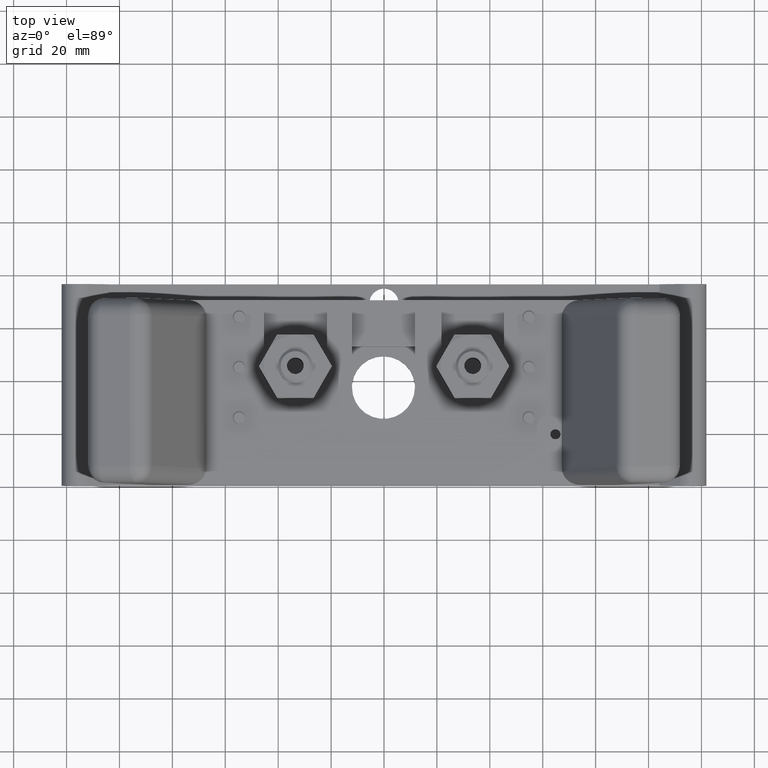
[diagram: clean part render]
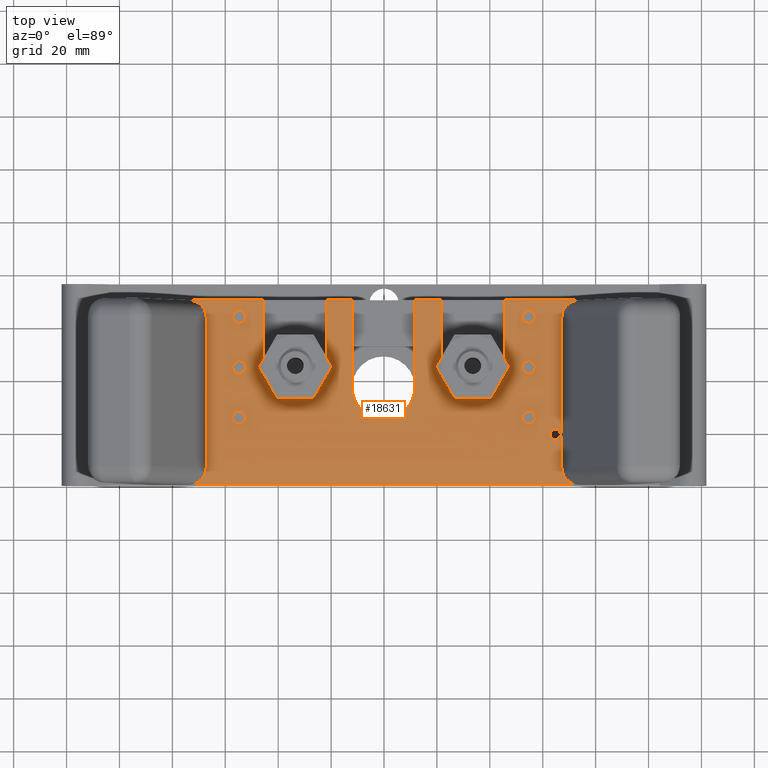
[diagram: same view with one face highlighted and labeled with its STEP entity id]
A machine part, top view. The second image highlights one B-rep face of the part: STEP entity #18631.
In plain terms, the highlighted planar face has unit normal (0, 0, -1).
Its self-contained STEP definition (entity closure, byte-faithful):
#3085=DIRECTION('',(-1.E0,0.E0,0.E0));
#3086=VECTOR('',#3085,1.129598050073E0);
#3087=CARTESIAN_POINT('',(2.917598050073E0,2.75E0,1.0816E0));
#3088=LINE('',#3087,#3086);
#3097=DIRECTION('',(-1.E0,0.E0,0.E0));
#3098=VECTOR('',#3097,3.92E-1);
#3099=CARTESIAN_POINT('',(8.52E-1,2.75E0,1.0816E0));
#3100=LINE('',#3099,#3098);
#3109=DIRECTION('',(-1.E0,0.E0,0.E0));
#3110=VECTOR('',#3109,3.76E-1);
#3111=CARTESIAN_POINT('',(-4.76E-1,2.75E0,1.0816E0));
#3112=LINE('',#3111,#3110);
#3121=DIRECTION('',(-1.E0,0.E0,0.E0));
#3122=VECTOR('',#3121,1.129598050073E0);
#3123=CARTESIAN_POINT('',(-1.788E0,2.75E0,1.0816E0));
#3124=LINE('',#3123,#3122);
#3193=DIRECTION('',(1.E0,0.E0,0.E0));
#3194=VECTOR('',#3193,5.835196100147E0);
#3195=CARTESIAN_POINT('',(-2.917598050073E0,0.E0,1.0816E0));
#3196=LINE('',#3195,#3194);
#3229=CARTESIAN_POINT('',(2.647E0,2.5E-1,1.0816E0));
#3230=CARTESIAN_POINT('',(2.647E0,2.391542072901E-1,1.0816E0));
#3231=CARTESIAN_POINT('',(2.648493906338E0,2.189565282088E-1,1.0816E0));
#3232=CARTESIAN_POINT('',(2.655716259480E0,1.827957105110E-1,1.0816E0));
#3233=CARTESIAN_POINT('',(2.670882758204E0,1.437332456859E-1,1.0816E0));
#3234=CARTESIAN_POINT('',(2.696180612941E0,1.039563441642E-1,1.0816E0));
#3235=CARTESIAN_POINT('',(2.727537617967E0,7.023859293100E-2,1.0816E0));
#3236=CARTESIAN_POINT('',(2.764585281088E0,4.221149979235E-2,1.0816E0));
#3237=CARTESIAN_POINT('',(2.807501866085E0,2.005332853070E-2,1.0816E0));
#3238=CARTESIAN_POINT('',(2.857122440366E0,4.599146552320E-3,1.0816E0));
#3239=CARTESIAN_POINT('',(2.895906464653E0,0.E0,1.0816E0));
#3240=CARTESIAN_POINT('',(2.917598050073E0,0.E0,1.0816E0));
#3242=CARTESIAN_POINT('',(-2.647E0,2.5E0,1.0816E0));
#3243=CARTESIAN_POINT('',(-2.647E0,2.510845792710E0,1.0816E0));
#3244=CARTESIAN_POINT('',(-2.648493906338E0,2.531043471791E0,1.0816E0));
#3245=CARTESIAN_POINT('',(-2.655716259480E0,2.567204289489E0,1.0816E0));
#3246=CARTESIAN_POINT('',(-2.670882758204E0,2.606266754314E0,1.0816E0));
#3247=CARTESIAN_POINT('',(-2.696180612941E0,2.646043655836E0,1.0816E0));
#3248=CARTESIAN_POINT('',(-2.727537617967E0,2.679761407069E0,1.0816E0));
#3249=CARTESIAN_POINT('',(-2.764585281088E0,2.707788500208E0,1.0816E0));
#3250=CARTESIAN_POINT('',(-2.807501866085E0,2.729946671469E0,1.0816E0));
#3251=CARTESIAN_POINT('',(-2.857122440366E0,2.745400853448E0,1.0816E0));
#3252=CARTESIAN_POINT('',(-2.895906464653E0,2.75E0,1.0816E0));
#3253=CARTESIAN_POINT('',(-2.917598050073E0,2.75E0,1.0816E0));
#3255=CARTESIAN_POINT('',(-1.32E0,1.75E0,1.0816E0));
#3256=DIRECTION('',(0.E0,0.E0,1.E0));
#3257=DIRECTION('',(-1.E0,0.E0,0.E0));
#3258=AXIS2_PLACEMENT_3D('',#3255,#3256,#3257);
#3260=DIRECTION('',(0.E0,1.E0,0.E0));
#3261=VECTOR('',#3260,1.E0);
#3262=CARTESIAN_POINT('',(-8.52E-1,1.75E0,1.0816E0));
#3263=LINE('',#3262,#3261);
#3264=CARTESIAN_POINT('',(-8.E-3,1.45E0,1.0816E0));
#3265=DIRECTION('',(0.E0,0.E0,1.E0));
#3266=DIRECTION('',(-1.E0,0.E0,0.E0));
#3267=AXIS2_PLACEMENT_3D('',#3264,#3265,#3266);
#3269=DIRECTION('',(0.E0,1.E0,0.E0));
#3270=VECTOR('',#3269,1.3E0);
#3271=CARTESIAN_POINT('',(4.6E-1,1.45E0,1.0816E0));
#3272=LINE('',#3271,#3270);
#3273=CARTESIAN_POINT('',(1.32E0,1.75E0,1.0816E0));
#3274=DIRECTION('',(0.E0,0.E0,1.E0));
#3275=DIRECTION('',(-1.E0,3.036507417778E-14,0.E0));
#3276=AXIS2_PLACEMENT_3D('',#3273,#3274,#3275);
#3278=DIRECTION('',(0.E0,1.E0,0.E0));
#3279=VECTOR('',#3278,1.E0);
#3280=CARTESIAN_POINT('',(1.788E0,1.75E0,1.0816E0));
#3281=LINE('',#3280,#3279);
#3282=CARTESIAN_POINT('',(2.55E0,7.5E-1,1.0816E0));
#3283=DIRECTION('',(0.E0,0.E0,1.E0));
#3284=DIRECTION('',(-1.E0,0.E0,0.E0));
#3285=AXIS2_PLACEMENT_3D('',#3282,#3283,#3284);
#3287=CARTESIAN_POINT('',(2.55E0,7.5E-1,1.0816E0));
#3288=DIRECTION('',(0.E0,0.E0,1.E0));
#3289=DIRECTION('',(1.E0,0.E0,0.E0));
#3290=AXIS2_PLACEMENT_3D('',#3287,#3288,#3289);
#3292=CARTESIAN_POINT('',(-2.156E0,1.75E0,1.0816E0));
#3293=DIRECTION('',(0.E0,0.E0,1.E0));
#3294=DIRECTION('',(1.E0,0.E0,0.E0));
#3295=AXIS2_PLACEMENT_3D('',#3292,#3293,#3294);
#3297=CARTESIAN_POINT('',(-2.156E0,1.75E0,1.0816E0));
#3298=DIRECTION('',(0.E0,0.E0,1.E0));
#3299=DIRECTION('',(-1.E0,0.E0,0.E0));
#3300=AXIS2_PLACEMENT_3D('',#3297,#3298,#3299);
#3302=CARTESIAN_POINT('',(2.156E0,1.75E0,1.0816E0));
#3303=DIRECTION('',(0.E0,0.E0,1.E0));
#3304=DIRECTION('',(1.E0,0.E0,0.E0));
#3305=AXIS2_PLACEMENT_3D('',#3302,#3303,#3304);
#3307=CARTESIAN_POINT('',(2.156E0,1.75E0,1.0816E0));
#3308=DIRECTION('',(0.E0,0.E0,1.E0));
#3309=DIRECTION('',(-1.E0,0.E0,0.E0));
#3310=AXIS2_PLACEMENT_3D('',#3307,#3308,#3309);
#3312=CARTESIAN_POINT('',(-2.156E0,2.5E0,1.0816E0));
#3313=DIRECTION('',(0.E0,0.E0,1.E0));
#3314=DIRECTION('',(1.E0,0.E0,0.E0));
#3315=AXIS2_PLACEMENT_3D('',#3312,#3313,#3314);
#3317=CARTESIAN_POINT('',(-2.156E0,2.5E0,1.0816E0));
#3318=DIRECTION('',(0.E0,0.E0,1.E0));
#3319=DIRECTION('',(-1.E0,0.E0,0.E0));
#3320=AXIS2_PLACEMENT_3D('',#3317,#3318,#3319);
#3322=CARTESIAN_POINT('',(-2.156E0,1.E0,1.0816E0));
#3323=DIRECTION('',(0.E0,0.E0,1.E0));
#3324=DIRECTION('',(1.E0,0.E0,0.E0));
#3325=AXIS2_PLACEMENT_3D('',#3322,#3323,#3324);
#3327=CARTESIAN_POINT('',(-2.156E0,1.E0,1.0816E0));
#3328=DIRECTION('',(0.E0,0.E0,1.E0));
#3329=DIRECTION('',(-1.E0,0.E0,0.E0));
#3330=AXIS2_PLACEMENT_3D('',#3327,#3328,#3329);
#3332=CARTESIAN_POINT('',(2.156E0,2.5E0,1.0816E0));
#3333=DIRECTION('',(0.E0,0.E0,1.E0));
#3334=DIRECTION('',(1.E0,0.E0,0.E0));
#3335=AXIS2_PLACEMENT_3D('',#3332,#3333,#3334);
#3337=CARTESIAN_POINT('',(2.156E0,2.5E0,1.0816E0));
#3338=DIRECTION('',(0.E0,0.E0,1.E0));
#3339=DIRECTION('',(-1.E0,0.E0,0.E0));
#3340=AXIS2_PLACEMENT_3D('',#3337,#3338,#3339);
#3342=CARTESIAN_POINT('',(2.156E0,1.E0,1.0816E0));
#3343=DIRECTION('',(0.E0,0.E0,1.E0));
#3344=DIRECTION('',(1.E0,0.E0,0.E0));
#3345=AXIS2_PLACEMENT_3D('',#3342,#3343,#3344);
#3347=CARTESIAN_POINT('',(2.156E0,1.E0,1.0816E0));
#3348=DIRECTION('',(0.E0,0.E0,1.E0));
#3349=DIRECTION('',(-1.E0,0.E0,0.E0));
#3350=AXIS2_PLACEMENT_3D('',#3347,#3348,#3349);
#3352=DIRECTION('',(0.E0,1.E0,0.E0));
#3353=VECTOR('',#3352,2.25E0);
#3354=CARTESIAN_POINT('',(2.647E0,2.5E-1,1.0816E0));
#3355=LINE('',#3354,#3353);
#3356=CARTESIAN_POINT('',(2.647E0,2.5E0,1.0816E0));
#3357=CARTESIAN_POINT('',(2.647E0,2.510845792710E0,1.0816E0));
#3358=CARTESIAN_POINT('',(2.648493906338E0,2.531043471791E0,1.0816E0));
#3359=CARTESIAN_POINT('',(2.655716259480E0,2.567204289489E0,1.0816E0));
#3360=CARTESIAN_POINT('',(2.670882758204E0,2.606266754314E0,1.0816E0));
#3361=CARTESIAN_POINT('',(2.696180612941E0,2.646043655836E0,1.0816E0));
#3362=CARTESIAN_POINT('',(2.727537617967E0,2.679761407069E0,1.0816E0));
#3363=CARTESIAN_POINT('',(2.764585281088E0,2.707788500208E0,1.0816E0));
#3364=CARTESIAN_POINT('',(2.807501866085E0,2.729946671469E0,1.0816E0));
#3365=CARTESIAN_POINT('',(2.857122440366E0,2.745400853448E0,1.0816E0));
#3366=CARTESIAN_POINT('',(2.895906464653E0,2.75E0,1.0816E0));
#3367=CARTESIAN_POINT('',(2.917598050073E0,2.75E0,1.0816E0));
#3465=CARTESIAN_POINT('',(-2.647E0,2.5E-1,1.0816E0));
#3466=CARTESIAN_POINT('',(-2.647E0,2.391542072901E-1,1.0816E0));
#3467=CARTESIAN_POINT('',(-2.648493906338E0,2.189565282088E-1,1.0816E0));
#3468=CARTESIAN_POINT('',(-2.655716259480E0,1.827957105110E-1,1.0816E0));
#3469=CARTESIAN_POINT('',(-2.670882758204E0,1.437332456859E-1,1.0816E0));
#3470=CARTESIAN_POINT('',(-2.696180612941E0,1.039563441642E-1,1.0816E0));
#3471=CARTESIAN_POINT('',(-2.727537617967E0,7.023859293100E-2,1.0816E0));
#3472=CARTESIAN_POINT('',(-2.764585281088E0,4.221149979235E-2,1.0816E0));
#3473=CARTESIAN_POINT('',(-2.807501866085E0,2.005332853070E-2,1.0816E0));
#3474=CARTESIAN_POINT('',(-2.857122440366E0,4.599146552321E-3,1.0816E0));
#3475=CARTESIAN_POINT('',(-2.895906464653E0,0.E0,1.0816E0));
#3476=CARTESIAN_POINT('',(-2.917598050073E0,0.E0,1.0816E0));
#3610=DIRECTION('',(0.E0,-1.E0,0.E0));
#3611=VECTOR('',#3610,2.25E0);
#3612=CARTESIAN_POINT('',(-2.647E0,2.5E0,1.0816E0));
#3613=LINE('',#3612,#3611);
#3642=DIRECTION('',(0.E0,1.E0,0.E0));
#3643=VECTOR('',#3642,1.E0);
#3644=CARTESIAN_POINT('',(-1.788E0,1.75E0,1.0816E0));
#3645=LINE('',#3644,#3643);
#3696=DIRECTION('',(0.E0,1.E0,0.E0));
#3697=VECTOR('',#3696,1.3E0);
#3698=CARTESIAN_POINT('',(-4.76E-1,1.45E0,1.0816E0));
#3699=LINE('',#3698,#3697);
#3742=DIRECTION('',(0.E0,1.E0,0.E0));
#3743=VECTOR('',#3742,1.E0);
#3744=CARTESIAN_POINT('',(8.52E-1,1.75E0,1.0816E0));
#3745=LINE('',#3744,#3743);
#11492=CARTESIAN_POINT('',(2.917598050073E0,2.75E0,1.0816E0));
#11493=VERTEX_POINT('',#11492);
#11494=CARTESIAN_POINT('',(1.788E0,2.75E0,1.0816E0));
#11495=VERTEX_POINT('',#11494);
#11500=CARTESIAN_POINT('',(8.52E-1,2.75E0,1.0816E0));
#11501=VERTEX_POINT('',#11500);
#11502=CARTESIAN_POINT('',(4.6E-1,2.75E0,1.0816E0));
#11503=VERTEX_POINT('',#11502);
#11508=CARTESIAN_POINT('',(-4.76E-1,2.75E0,1.0816E0));
#11509=VERTEX_POINT('',#11508);
#11510=CARTESIAN_POINT('',(-8.52E-1,2.75E0,1.0816E0));
#11511=VERTEX_POINT('',#11510);
#11516=CARTESIAN_POINT('',(-1.788E0,2.75E0,1.0816E0));
#11517=VERTEX_POINT('',#11516);
#11518=CARTESIAN_POINT('',(-2.917598050073E0,2.75E0,1.0816E0));
#11519=VERTEX_POINT('',#11518);
#11546=CARTESIAN_POINT('',(-2.917598050073E0,0.E0,1.0816E0));
#11547=CARTESIAN_POINT('',(2.917598050073E0,0.E0,1.0816E0));
#11548=VERTEX_POINT('',#11546);
#11549=VERTEX_POINT('',#11547);
#11560=CARTESIAN_POINT('',(2.647E0,2.5E-1,1.0816E0));
#11561=CARTESIAN_POINT('',(2.647E0,2.5E0,1.0816E0));
#11562=VERTEX_POINT('',#11560);
#11563=VERTEX_POINT('',#11561);
#11564=VERTEX_POINT('',#3465);
#11565=CARTESIAN_POINT('',(-2.647E0,2.5E0,1.0816E0));
#11566=VERTEX_POINT('',#11565);
#11567=CARTESIAN_POINT('',(-1.788E0,1.75E0,1.0816E0));
#11568=VERTEX_POINT('',#11567);
#11569=CARTESIAN_POINT('',(-8.52E-1,1.75E0,1.0816E0));
#11570=VERTEX_POINT('',#11569);
#11571=CARTESIAN_POINT('',(-4.76E-1,1.45E0,1.0816E0));
#11572=VERTEX_POINT('',#11571);
#11573=CARTESIAN_POINT('',(4.6E-1,1.45E0,1.0816E0));
#11574=VERTEX_POINT('',#11573);
#11575=CARTESIAN_POINT('',(8.52E-1,1.75E0,1.0816E0));
#11576=VERTEX_POINT('',#11575);
#11577=CARTESIAN_POINT('',(1.788E0,1.75E0,1.0816E0));
#11578=VERTEX_POINT('',#11577);
#11579=CARTESIAN_POINT('',(2.475E0,7.5E-1,1.0816E0));
#11580=CARTESIAN_POINT('',(2.625E0,7.5E-1,1.0816E0));
#11581=VERTEX_POINT('',#11579);
#11582=VERTEX_POINT('',#11580);
#11583=CARTESIAN_POINT('',(-2.061E0,1.75E0,1.0816E0));
#11584=CARTESIAN_POINT('',(-2.251E0,1.75E0,1.0816E0));
#11585=VERTEX_POINT('',#11583);
#11586=VERTEX_POINT('',#11584);
#11587=CARTESIAN_POINT('',(2.251E0,1.75E0,1.0816E0));
#11588=CARTESIAN_POINT('',(2.061E0,1.75E0,1.0816E0));
#11589=VERTEX_POINT('',#11587);
#11590=VERTEX_POINT('',#11588);
#11591=CARTESIAN_POINT('',(-2.061E0,2.5E0,1.0816E0));
#11592=CARTESIAN_POINT('',(-2.251E0,2.5E0,1.0816E0));
#11593=VERTEX_POINT('',#11591);
#11594=VERTEX_POINT('',#11592);
#11595=CARTESIAN_POINT('',(-2.061E0,1.E0,1.0816E0));
#11596=CARTESIAN_POINT('',(-2.251E0,1.E0,1.0816E0));
#11597=VERTEX_POINT('',#11595);
#11598=VERTEX_POINT('',#11596);
#11599=CARTESIAN_POINT('',(2.251E0,2.5E0,1.0816E0));
#11600=CARTESIAN_POINT('',(2.061E0,2.5E0,1.0816E0));
#11601=VERTEX_POINT('',#11599);
#11602=VERTEX_POINT('',#11600);
#11603=CARTESIAN_POINT('',(2.251E0,1.E0,1.0816E0));
#11604=CARTESIAN_POINT('',(2.061E0,1.E0,1.0816E0));
#11605=VERTEX_POINT('',#11603);
#11606=VERTEX_POINT('',#11604);
#18547=CARTESIAN_POINT('',(3.75E0,0.E0,1.0816E0));
#18548=DIRECTION('',(0.E0,0.E0,-1.E0));
#18549=DIRECTION('',(1.E0,0.E0,0.E0));
#18550=AXIS2_PLACEMENT_3D('',#18547,#18548,#18549);
#18551=PLANE('',#18550);
#18553=ORIENTED_EDGE('',*,*,#18552,.F.);
#18555=ORIENTED_EDGE('',*,*,#18554,.T.);
#18556=ORIENTED_EDGE('',*,*,#18523,.F.);
#18558=ORIENTED_EDGE('',*,*,#18557,.F.);
#18560=ORIENTED_EDGE('',*,*,#18559,.F.);
#18562=ORIENTED_EDGE('',*,*,#18561,.T.);
#18563=ORIENTED_EDGE('',*,*,#18424,.F.);
#18565=ORIENTED_EDGE('',*,*,#18564,.F.);
#18567=ORIENTED_EDGE('',*,*,#18566,.T.);
#18569=ORIENTED_EDGE('',*,*,#18568,.T.);
#18570=ORIENTED_EDGE('',*,*,#18416,.F.);
#18572=ORIENTED_EDGE('',*,*,#18571,.F.);
#18574=ORIENTED_EDGE('',*,*,#18573,.T.);
#18576=ORIENTED_EDGE('',*,*,#18575,.T.);
#18577=ORIENTED_EDGE('',*,*,#18408,.F.);
#18579=ORIENTED_EDGE('',*,*,#18578,.F.);
#18581=ORIENTED_EDGE('',*,*,#18580,.T.);
#18583=ORIENTED_EDGE('',*,*,#18582,.T.);
#18584=ORIENTED_EDGE('',*,*,#18400,.F.);
#18586=ORIENTED_EDGE('',*,*,#18585,.F.);
#18587=EDGE_LOOP('',(#18553,#18555,#18556,#18558,#18560,#18562,#18563,#18565,
#18567,#18569,#18570,#18572,#18574,#18576,#18577,#18579,#18581,#18583,#18584,
#18586));
#18588=FACE_OUTER_BOUND('',#18587,.F.);
#18590=ORIENTED_EDGE('',*,*,#18589,.T.);
#18592=ORIENTED_EDGE('',*,*,#18591,.T.);
#18593=EDGE_LOOP('',(#18590,#18592));
#18594=FACE_BOUND('',#18593,.F.);
#18596=ORIENTED_EDGE('',*,*,#18595,.T.);
#18598=ORIENTED_EDGE('',*,*,#18597,.T.);
#18599=EDGE_LOOP('',(#18596,#18598));
#18600=FACE_BOUND('',#18599,.F.);
#18602=ORIENTED_EDGE('',*,*,#18601,.T.);
#18604=ORIENTED_EDGE('',*,*,#18603,.T.);
#18605=EDGE_LOOP('',(#18602,#18604));
#18606=FACE_BOUND('',#18605,.F.);
#18608=ORIENTED_EDGE('',*,*,#18607,.T.);
#18610=ORIENTED_EDGE('',*,*,#18609,.T.);
#18611=EDGE_LOOP('',(#18608,#18610));
#18612=FACE_BOUND('',#18611,.F.);
#18614=ORIENTED_EDGE('',*,*,#18613,.T.);
#18616=ORIENTED_EDGE('',*,*,#18615,.T.);
#18617=EDGE_LOOP('',(#18614,#18616));
#18618=FACE_BOUND('',#18617,.F.);
#18620=ORIENTED_EDGE('',*,*,#18619,.T.);
#18622=ORIENTED_EDGE('',*,*,#18621,.T.);
#18623=EDGE_LOOP('',(#18620,#18622));
#18624=FACE_BOUND('',#18623,.F.);
#18626=ORIENTED_EDGE('',*,*,#18625,.T.);
#18628=ORIENTED_EDGE('',*,*,#18627,.T.);
#18629=EDGE_LOOP('',(#18626,#18628));
#18630=FACE_BOUND('',#18629,.F.);
#3241=B_SPLINE_CURVE_WITH_KNOTS('',3,(#3229,#3230,#3231,#3232,#3233,#3234,#3235,
#3236,#3237,#3238,#3239,#3240),.UNSPECIFIED.,.F.,.F.,(4,1,1,1,1,1,1,1,1,4),
(0.E0,6.25E-2,1.25E-1,2.5E-1,3.75E-1,5.E-1,6.25E-1,7.5E-1,8.75E-1,1.E0),
.UNSPECIFIED.);
#3254=B_SPLINE_CURVE_WITH_KNOTS('',3,(#3242,#3243,#3244,#3245,#3246,#3247,#3248,
#3249,#3250,#3251,#3252,#3253),.UNSPECIFIED.,.F.,.F.,(4,1,1,1,1,1,1,1,1,4),
(0.E0,6.25E-2,1.25E-1,2.5E-1,3.75E-1,5.E-1,6.25E-1,7.5E-1,8.75E-1,1.E0),
.UNSPECIFIED.);
#3259=CIRCLE('',#3258,4.68E-1);
#3268=CIRCLE('',#3267,4.68E-1);
#3277=CIRCLE('',#3276,4.68E-1);
#3286=CIRCLE('',#3285,7.5E-2);
#3291=CIRCLE('',#3290,7.5E-2);
#3296=CIRCLE('',#3295,9.5E-2);
#3301=CIRCLE('',#3300,9.5E-2);
#3306=CIRCLE('',#3305,9.5E-2);
#3311=CIRCLE('',#3310,9.5E-2);
#3316=CIRCLE('',#3315,9.5E-2);
#3321=CIRCLE('',#3320,9.5E-2);
#3326=CIRCLE('',#3325,9.5E-2);
#3331=CIRCLE('',#3330,9.5E-2);
#3336=CIRCLE('',#3335,9.5E-2);
#3341=CIRCLE('',#3340,9.5E-2);
#3346=CIRCLE('',#3345,9.5E-2);
#3351=CIRCLE('',#3350,9.5E-2);
#3368=B_SPLINE_CURVE_WITH_KNOTS('',3,(#3356,#3357,#3358,#3359,#3360,#3361,#3362,
#3363,#3364,#3365,#3366,#3367),.UNSPECIFIED.,.F.,.F.,(4,1,1,1,1,1,1,1,1,4),
(0.E0,6.25E-2,1.25E-1,2.5E-1,3.75E-1,5.E-1,6.25E-1,7.5E-1,8.75E-1,1.E0),
.UNSPECIFIED.);
#3477=B_SPLINE_CURVE_WITH_KNOTS('',3,(#3465,#3466,#3467,#3468,#3469,#3470,#3471,
#3472,#3473,#3474,#3475,#3476),.UNSPECIFIED.,.F.,.F.,(4,1,1,1,1,1,1,1,1,4),
(0.E0,6.25E-2,1.25E-1,2.5E-1,3.75E-1,5.E-1,6.25E-1,7.5E-1,8.75E-1,1.E0),
.UNSPECIFIED.);
#18400=EDGE_CURVE('',#11493,#11495,#3088,.T.);
#18408=EDGE_CURVE('',#11501,#11503,#3100,.T.);
#18416=EDGE_CURVE('',#11509,#11511,#3112,.T.);
#18424=EDGE_CURVE('',#11517,#11519,#3124,.T.);
#18523=EDGE_CURVE('',#11548,#11549,#3196,.T.);
#18552=EDGE_CURVE('',#11562,#11563,#3355,.T.);
#18554=EDGE_CURVE('',#11562,#11549,#3241,.T.);
#18557=EDGE_CURVE('',#11564,#11548,#3477,.T.);
#18559=EDGE_CURVE('',#11566,#11564,#3613,.T.);
#18561=EDGE_CURVE('',#11566,#11519,#3254,.T.);
#18564=EDGE_CURVE('',#11568,#11517,#3645,.T.);
#18566=EDGE_CURVE('',#11568,#11570,#3259,.T.);
#18568=EDGE_CURVE('',#11570,#11511,#3263,.T.);
#18571=EDGE_CURVE('',#11572,#11509,#3699,.T.);
#18573=EDGE_CURVE('',#11572,#11574,#3268,.T.);
#18575=EDGE_CURVE('',#11574,#11503,#3272,.T.);
#18578=EDGE_CURVE('',#11576,#11501,#3745,.T.);
#18580=EDGE_CURVE('',#11576,#11578,#3277,.T.);
#18582=EDGE_CURVE('',#11578,#11495,#3281,.T.);
#18585=EDGE_CURVE('',#11563,#11493,#3368,.T.);
#18589=EDGE_CURVE('',#11581,#11582,#3286,.T.);
#18591=EDGE_CURVE('',#11582,#11581,#3291,.T.);
#18595=EDGE_CURVE('',#11585,#11586,#3296,.T.);
#18597=EDGE_CURVE('',#11586,#11585,#3301,.T.);
#18601=EDGE_CURVE('',#11589,#11590,#3306,.T.);
#18603=EDGE_CURVE('',#11590,#11589,#3311,.T.);
#18607=EDGE_CURVE('',#11593,#11594,#3316,.T.);
#18609=EDGE_CURVE('',#11594,#11593,#3321,.T.);
#18613=EDGE_CURVE('',#11597,#11598,#3326,.T.);
#18615=EDGE_CURVE('',#11598,#11597,#3331,.T.);
#18619=EDGE_CURVE('',#11601,#11602,#3336,.T.);
#18621=EDGE_CURVE('',#11602,#11601,#3341,.T.);
#18625=EDGE_CURVE('',#11605,#11606,#3346,.T.);
#18627=EDGE_CURVE('',#11606,#11605,#3351,.T.);
#18631=ADVANCED_FACE('',(#18588,#18594,#18600,#18606,#18612,#18618,#18624,
#18630),#18551,.F.);